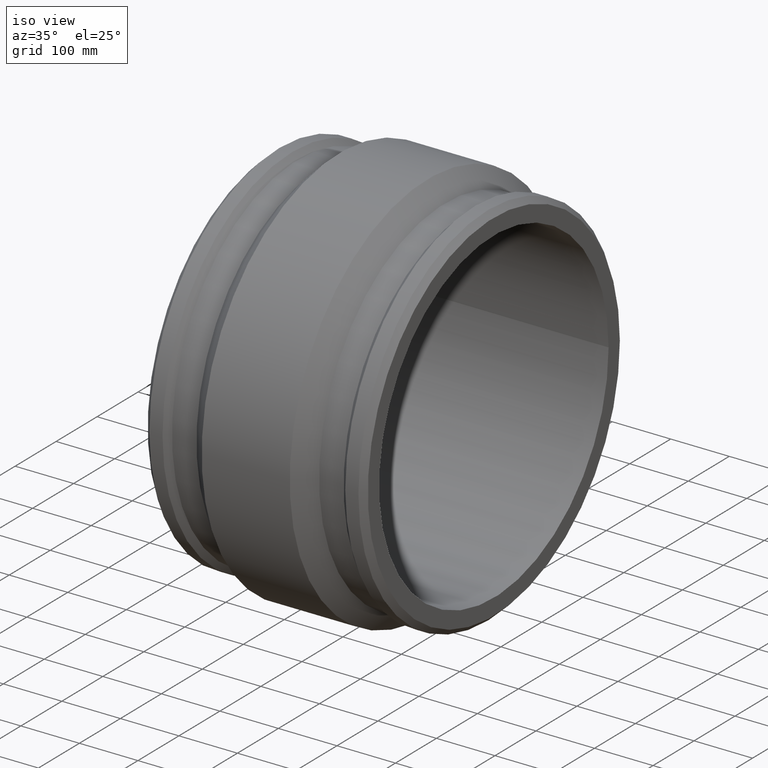
[diagram: clean part render]
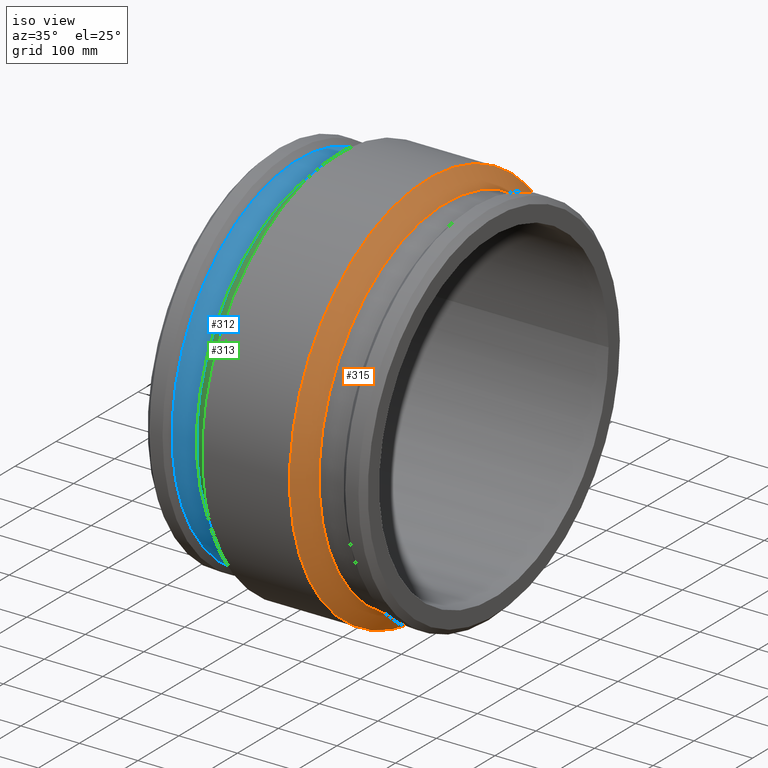
[diagram: same view with three faces highlighted in distinct colors, each labeled with its STEP entity id]
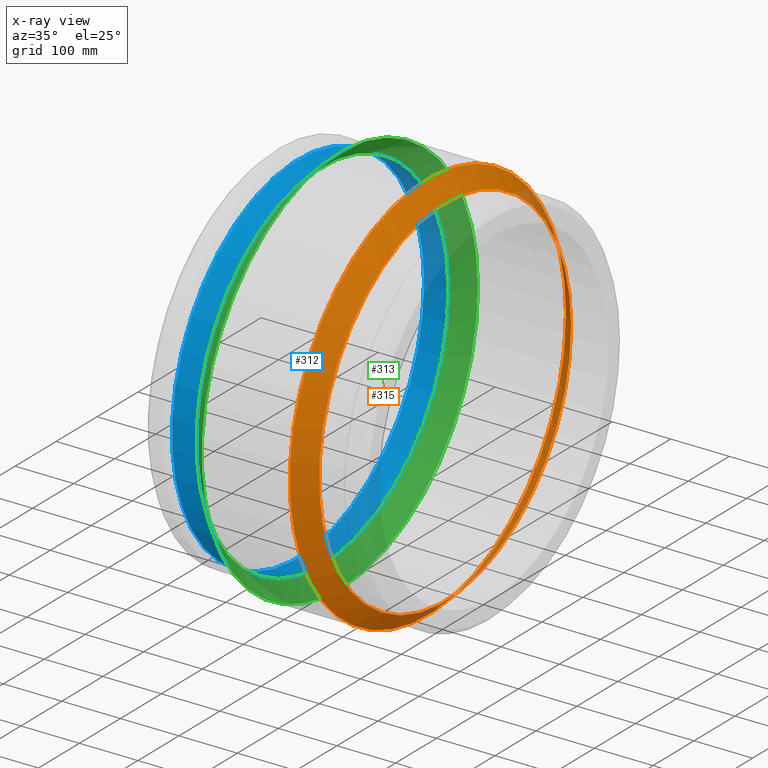
[diagram: x-ray of the same camera — body ghosted, the three highlighted faces saturated]
A machine part, iso view with three faces highlighted in distinct colors.
The next image is the same camera in x-ray (body ghosted, the three faces saturated) — at least one of them is partly hidden behind the body in this view.
Their STEP definitions:

[orange] entity #315 — the highlighted conical surface has half-angle 45 deg.
#18=CONICAL_SURFACE('',#367,322.245,45.);
#43=FACE_BOUND('',#132,.T.);
#85=FACE_OUTER_BOUND('',#131,.T.);
#131=EDGE_LOOP('',(#273));
#132=EDGE_LOOP('',(#274));
#164=CIRCLE('',#366,337.);
#165=CIRCLE('',#368,307.49);
#190=VERTEX_POINT('',#626);
#191=VERTEX_POINT('',#629);
#220=EDGE_CURVE('',#190,#190,#164,.T.);
#221=EDGE_CURVE('',#191,#191,#165,.T.);
#273=ORIENTED_EDGE('',*,*,#220,.T.);
#274=ORIENTED_EDGE('',*,*,#221,.F.);
#315=ADVANCED_FACE('',(#85,#43),#18,.T.);
#366=AXIS2_PLACEMENT_3D('',#627,#465,#466);
#367=AXIS2_PLACEMENT_3D('',#628,#467,#468);
#368=AXIS2_PLACEMENT_3D('',#630,#469,#470);
#465=DIRECTION('center_axis',(1.,1.83697019872103E-16,0.));
#466=DIRECTION('ref_axis',(0.,0.,-1.));
#467=DIRECTION('center_axis',(-1.,-1.83697019872103E-16,0.));
#468=DIRECTION('ref_axis',(-1.90323947078598E-16,1.,0.));
#469=DIRECTION('center_axis',(1.,1.83697019872103E-16,0.));
#470=DIRECTION('ref_axis',(0.,0.,-1.));
#626=CARTESIAN_POINT('',(75.2,337.,0.));
#627=CARTESIAN_POINT('Origin',(75.2,4.83490556303375E-14,0.));
#628=CARTESIAN_POINT('Origin',(89.955,5.10595051585504E-14,0.));
#629=CARTESIAN_POINT('',(104.71,307.49,0.));
#630=CARTESIAN_POINT('Origin',(104.71,5.37699546867633E-14,0.));

[blue] entity #312 — the highlighted cylindrical surface (bore or boss wall) has radius 307.49 mm, axis along (1, 0, 0).
#40=FACE_BOUND('',#126,.T.);
#59=CYLINDRICAL_SURFACE('',#361,307.49);
#82=FACE_OUTER_BOUND('',#125,.T.);
#125=EDGE_LOOP('',(#267));
#126=EDGE_LOOP('',(#268));
#161=CIRCLE('',#360,307.49);
#162=CIRCLE('',#362,307.49);
#187=VERTEX_POINT('',#617);
#188=VERTEX_POINT('',#620);
#217=EDGE_CURVE('',#187,#187,#161,.T.);
#218=EDGE_CURVE('',#188,#188,#162,.T.);
#267=ORIENTED_EDGE('',*,*,#217,.T.);
#268=ORIENTED_EDGE('',*,*,#218,.F.);
#312=ADVANCED_FACE('',(#82,#40),#59,.T.);
#360=AXIS2_PLACEMENT_3D('',#618,#453,#454);
#361=AXIS2_PLACEMENT_3D('',#619,#455,#456);
#362=AXIS2_PLACEMENT_3D('',#621,#457,#458);
#453=DIRECTION('center_axis',(1.,1.83697019872103E-16,0.));
#454=DIRECTION('ref_axis',(0.,0.,-1.));
#455=DIRECTION('center_axis',(1.,1.83697019872103E-16,0.));
#456=DIRECTION('ref_axis',(-1.90323947078598E-16,1.,0.));
#457=DIRECTION('center_axis',(1.,1.83697019872103E-16,0.));
#458=DIRECTION('ref_axis',(0.,0.,-1.));
#617=CARTESIAN_POINT('',(-146.64,307.49,0.));
#618=CARTESIAN_POINT('Origin',(-146.64,7.59770874191018E-15,0.));
#619=CARTESIAN_POINT('Origin',(-125.675,1.14489167635288E-14,0.));
#620=CARTESIAN_POINT('',(-104.71,307.49,0.));
#621=CARTESIAN_POINT('Origin',(-104.71,1.53001247851474E-14,0.));

[green] entity #313 — the highlighted conical surface has half-angle 45 deg.
#17=CONICAL_SURFACE('',#363,322.245,45.);
#41=FACE_BOUND('',#128,.T.);
#83=FACE_OUTER_BOUND('',#127,.T.);
#127=EDGE_LOOP('',(#269));
#128=EDGE_LOOP('',(#270));
#162=CIRCLE('',#362,307.49);
#163=CIRCLE('',#364,337.);
#188=VERTEX_POINT('',#620);
#189=VERTEX_POINT('',#623);
#218=EDGE_CURVE('',#188,#188,#162,.T.);
#219=EDGE_CURVE('',#189,#189,#163,.T.);
#269=ORIENTED_EDGE('',*,*,#218,.T.);
#270=ORIENTED_EDGE('',*,*,#219,.F.);
#313=ADVANCED_FACE('',(#83,#41),#17,.T.);
#362=AXIS2_PLACEMENT_3D('',#621,#457,#458);
#363=AXIS2_PLACEMENT_3D('',#622,#459,#460);
#364=AXIS2_PLACEMENT_3D('',#624,#461,#462);
#457=DIRECTION('center_axis',(1.,1.83697019872103E-16,0.));
#458=DIRECTION('ref_axis',(0.,0.,-1.));
#459=DIRECTION('center_axis',(1.,1.83697019872103E-16,0.));
#460=DIRECTION('ref_axis',(-1.90323947078598E-16,1.,0.));
#461=DIRECTION('center_axis',(1.,1.83697019872103E-16,0.));
#462=DIRECTION('ref_axis',(0.,0.,-1.));
#620=CARTESIAN_POINT('',(-104.71,307.49,0.));
#621=CARTESIAN_POINT('Origin',(-104.71,1.53001247851474E-14,0.));
#622=CARTESIAN_POINT('Origin',(-89.955,1.80105743133603E-14,0.));
#623=CARTESIAN_POINT('',(-75.2,337.,0.));
#624=CARTESIAN_POINT('Origin',(-75.2,2.07210238415732E-14,0.));